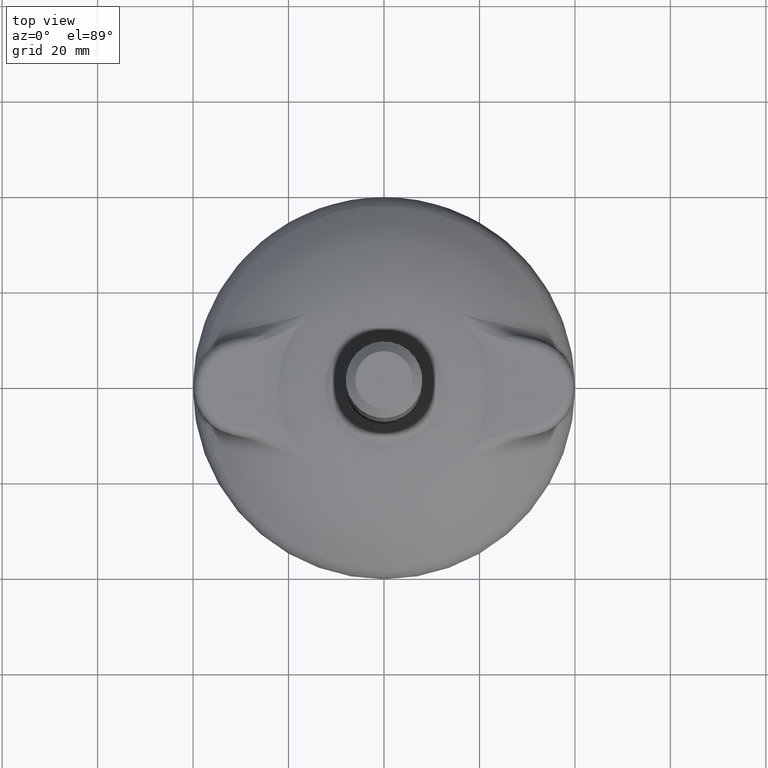
[diagram: clean part render]
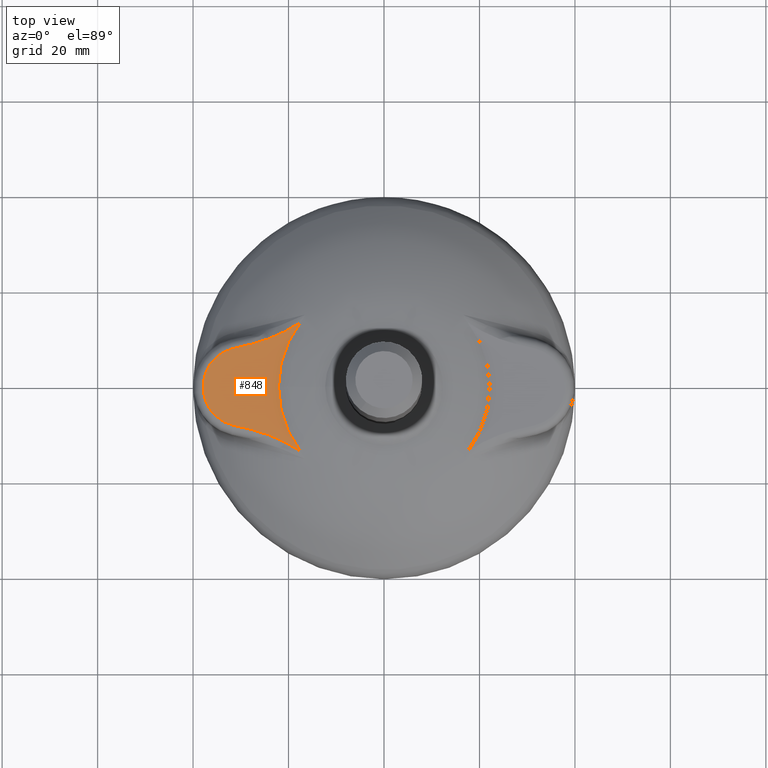
[diagram: same view with one face highlighted and labeled with its STEP entity id]
A machine part, top view. The second image highlights one B-rep face of the part: STEP entity #848.
In plain terms, the highlighted planar face has unit normal (0, 0, -1).
Its self-contained STEP definition (entity closure, byte-faithful):
#60=B_SPLINE_CURVE_WITH_KNOTS('',3,(#1832,#1833,#1834,#1835,#1836,#1837),
 .UNSPECIFIED.,.F.,.F.,(4,1,1,4),(0.,0.560611349643912,0.934352249406521,
1.12041446327105),.UNSPECIFIED.);
#61=B_SPLINE_CURVE_WITH_KNOTS('',3,(#1844,#1845,#1846,#1847,#1848),
 .UNSPECIFIED.,.F.,.F.,(4,1,4),(0.187723728382281,0.560611349252408,1.30809314825562),
 .UNSPECIFIED.);
#97=LINE('',#1839,#125);
#98=LINE('',#1843,#126);
#125=VECTOR('',#1106,10.);
#126=VECTOR('',#1109,10.);
#171=FACE_OUTER_BOUND('',#223,.T.);
#223=EDGE_LOOP('',(#643,#644,#645,#646,#647,#648,#649));
#265=CIRCLE('',#921,22.103331811743);
#269=CIRCLE('',#925,22.103331811743);
#282=CIRCLE('',#946,8.2709865184655);
#325=VERTEX_POINT('',#1312);
#326=VERTEX_POINT('',#1316);
#341=VERTEX_POINT('',#1391);
#360=VERTEX_POINT('',#1831);
#361=VERTEX_POINT('',#1838);
#362=VERTEX_POINT('',#1840);
#363=VERTEX_POINT('',#1842);
#409=EDGE_CURVE('',#325,#326,#265,.T.);
#425=EDGE_CURVE('',#341,#325,#269,.T.);
#463=EDGE_CURVE('',#360,#341,#60,.T.);
#464=EDGE_CURVE('',#361,#360,#97,.T.);
#465=EDGE_CURVE('',#362,#361,#282,.T.);
#466=EDGE_CURVE('',#363,#362,#98,.T.);
#467=EDGE_CURVE('',#326,#363,#61,.T.);
#643=ORIENTED_EDGE('',*,*,#463,.F.);
#644=ORIENTED_EDGE('',*,*,#464,.F.);
#645=ORIENTED_EDGE('',*,*,#465,.F.);
#646=ORIENTED_EDGE('',*,*,#466,.F.);
#647=ORIENTED_EDGE('',*,*,#467,.F.);
#648=ORIENTED_EDGE('',*,*,#409,.F.);
#649=ORIENTED_EDGE('',*,*,#425,.F.);
#761=PLANE('',#945);
#848=ADVANCED_FACE('',(#171),#761,.F.);
#921=AXIS2_PLACEMENT_3D('',#1317,#1048,#1049);
#925=AXIS2_PLACEMENT_3D('',#1400,#1056,#1057);
#945=AXIS2_PLACEMENT_3D('',#1830,#1104,#1105);
#946=AXIS2_PLACEMENT_3D('',#1841,#1107,#1108);
#1048=DIRECTION('center_axis',(0.,0.,1.));
#1049=DIRECTION('ref_axis',(1.,0.,0.));
#1056=DIRECTION('center_axis',(0.,0.,1.));
#1057=DIRECTION('ref_axis',(1.,0.,0.));
#1104=DIRECTION('center_axis',(0.,0.,-1.));
#1105=DIRECTION('ref_axis',(-1.,0.,0.));
#1106=DIRECTION('',(0.973616310567801,0.228191322789328,0.));
#1107=DIRECTION('center_axis',(0.,0.,-1.));
#1108=DIRECTION('ref_axis',(-1.,-1.08756782549545E-16,0.));
#1109=DIRECTION('',(-0.973616310567801,0.228191322789328,0.));
#1312=CARTESIAN_POINT('',(-22.103331811743,-2.7068774553743E-15,14.));
#1316=CARTESIAN_POINT('',(-17.4998852429205,-13.502269944888,14.));
#1317=CARTESIAN_POINT('Origin',(0.,0.,14.));
#1391=CARTESIAN_POINT('',(-17.4998852429205,13.502269944888,14.));
#1400=CARTESIAN_POINT('Origin',(0.,0.,14.));
#1830=CARTESIAN_POINT('Origin',(4.62657816045888E-15,-7.27389775507096E-17,
14.));
#1831=CARTESIAN_POINT('',(-27.6758425977406,8.95927708746144,14.));
#1832=CARTESIAN_POINT('Ctrl Pts',(-27.6758425769122,8.9592770923431,14.));
#1833=CARTESIAN_POINT('Ctrl Pts',(-25.8564413970603,9.38569924307812,14.));
#1834=CARTESIAN_POINT('Ctrl Pts',(-22.9202220408811,10.4569616553755,14.));
#1835=CARTESIAN_POINT('Ctrl Pts',(-19.5824687888736,12.151887846742,14.));
#1836=CARTESIAN_POINT('Ctrl Pts',(-18.0071655276057,13.1449765441694,14.));
#1837=CARTESIAN_POINT('Ctrl Pts',(-17.4986641219367,13.5005361135904,14.));
#1838=CARTESIAN_POINT('',(-31.5436173544213,8.0527673788644,14.));
#1839=CARTESIAN_POINT('',(-17.4876118001515,11.3471436806464,14.));
#1840=CARTESIAN_POINT('',(-31.5436173544213,-8.0527673788644,14.));
#1841=CARTESIAN_POINT('Origin',(-29.65625,6.81642273290504E-18,14.));
#1842=CARTESIAN_POINT('',(-27.6758425679697,-8.959277094439,14.));
#1843=CARTESIAN_POINT('',(-1.4876118001515,-15.0971436806464,14.));
#1844=CARTESIAN_POINT('Ctrl Pts',(-17.4998852314542,-13.5022699285318,13.9999941705495));
#1845=CARTESIAN_POINT('Ctrl Pts',(-18.5187647634169,-12.7893287130303,13.9999904416754));
#1846=CARTESIAN_POINT('Ctrl Pts',(-21.7610093025551,-10.9402530734232,13.9999985410039));
#1847=CARTESIAN_POINT('Ctrl Pts',(-25.2517236711879,-9.53244924632992,13.9999572649825));
#1848=CARTESIAN_POINT('Ctrl Pts',(-27.6771632958932,-8.96491220024603,13.9999910610229));